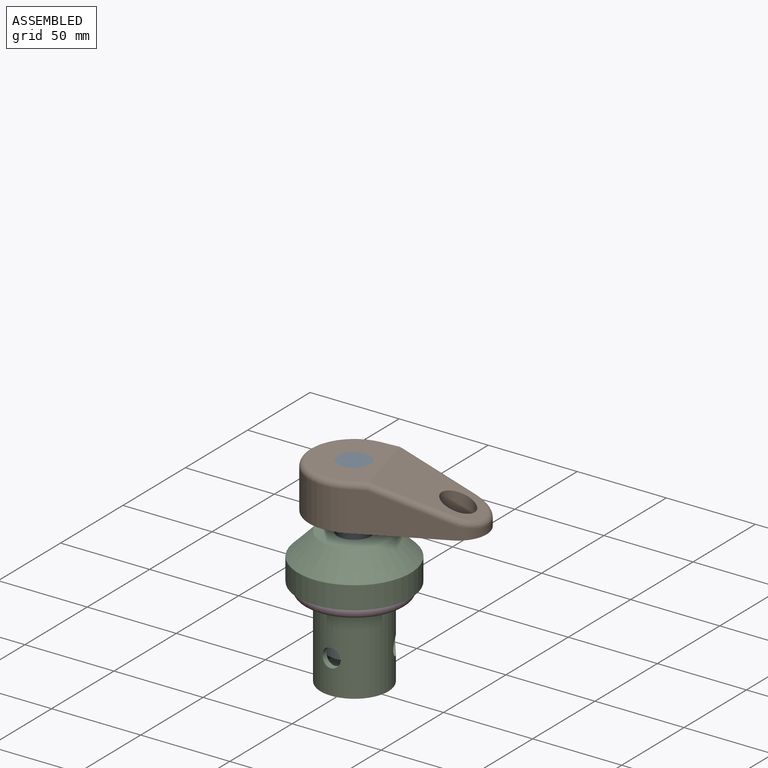
[diagram: assembled view]
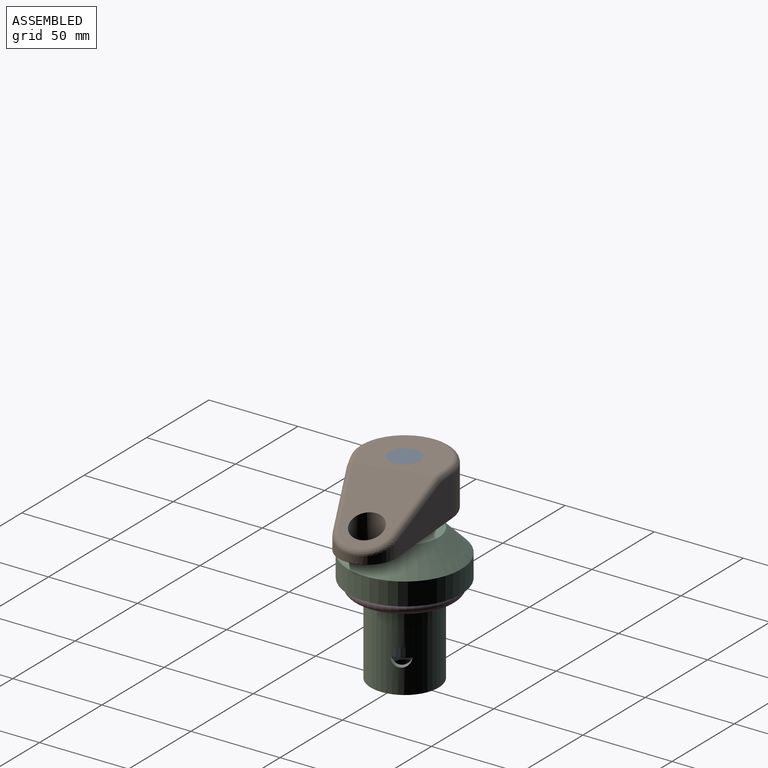
[diagram: assembled view, second angle]
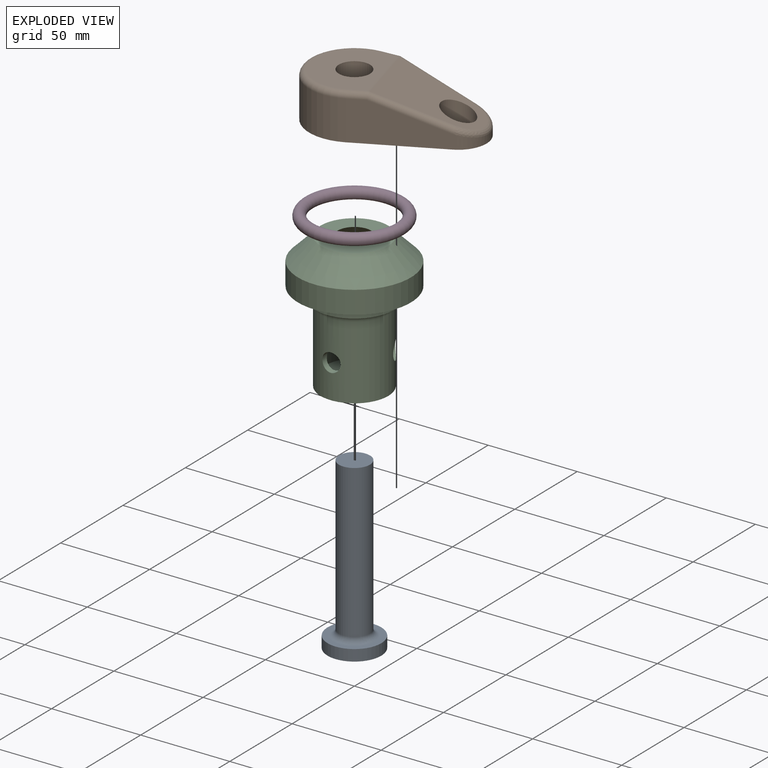
[diagram: exploded view]
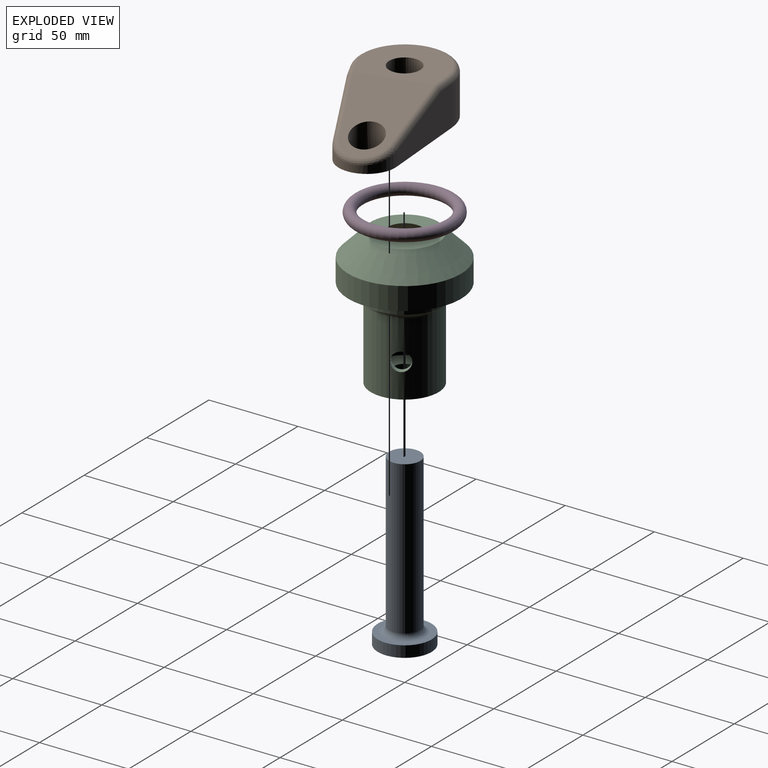
[diagram: exploded view, second angle]
ASSEMBLY  parts=4 mates=3
PART A: 6 faces, bbox 30.2x30.2x95.3 mm
  f0: plane 30.16x30.16mm, normal (0,0,-1), area 714.5mm2, adj f1
  f1: cylinder r=15.08mm len=30.16mm, axis (0,0,-1), area 601.7mm2, adj f0,f2
  f2: plane 30.16x30.16mm, normal (0,0,1), area 269.2mm2, adj f1,f5
  f3: cylinder r=8.73mm len=85.73mm, axis (0,0,-1), area 4702.9mm2, adj f4,f5
  f4: plane 17.46x17.46mm, normal (0,0,1), area 239.5mm2, adj f3
  f5: torus R=11.91mm, axis (0,0,-1), area 309.8mm2, adj f2,f3
PART B: 18 faces, bbox 94.2x55x25.4 mm
  f0: plane 49.01x22.23mm, normal (0.19,-0.98,0), area 821.3mm2, adj f1,f4,f5,f9,f12
  f1: cylinder r=15.88mm len=31.19mm, axis (0,0,1), area 239.8mm2, adj f0,f2,f4,f15
  f2: plane 49.01x22.23mm, normal (0.19,0.98,0), area 821.3mm2, adj f1,f4,f5,f14,f17
  f3: cylinder r=8.73mm len=17.46mm, axis (0,0,1), area 665.3mm2, adj f4,f8
  f4: plane 92.08x50.8mm, normal (0,0,-1), area 3064mm2, adj f0,f1,f2,f3,f5,f6
  f5: cylinder r=25.4mm len=50.8mm, axis (0,0,1), area 1986.4mm2, adj f0,f2,f4,f11
  f6: cylinder r=8.73mm len=25.4mm, axis (0,0,1), area 1393.4mm2, adj f4,f7
  f7: plane 44.45x36mm, normal (0,0,1), area 1122.4mm2, adj f6,f9,f11,f13,f14
  f8: plane 49.72x39.99mm, normal (0.34,0,0.94), area 1312.4mm2, adj f3,f12,f13,f15,f17
  f9: cylinder r=3.17mm len=10.2mm, axis (0.98,0.19,0), area 48.8mm2, adj f0,f7,f10,f11
  f10: sphere r=3.17mm, area 3.3mm2, adj f9,f12,f13
  f11: torus R=22.23mm, axis (0,0,1), area 425.5mm2, adj f5,f7,f9,f14
  f12: cylinder r=3.17mm len=40.02mm, axis (-0.92,-0.18,0.34), area 203.8mm2, adj f0,f8,f10,f15
  f13: cylinder r=3.17mm len=39.99mm, axis (0,-1,0), area 44.3mm2, adj f7,f8,f10,f16
  f14: cylinder r=3.17mm len=10.2mm, axis (-0.98,0.19,0), area 48.8mm2, adj f2,f7,f11,f16
  f15: bspline ~31.19x12.89mm, area 173.1mm2, adj f1,f8,f12,f17
  f16: sphere r=3.17mm, area 3.3mm2, adj f13,f14,f17
  f17: cylinder r=3.17mm len=40.02mm, axis (0.92,-0.18,-0.34), area 203.8mm2, adj f2,f8,f15,f16
PART C: 17 faces, bbox 63.5x63.5x76.2 mm
  f0: cylinder r=19.05mm len=41.28mm, axis (0,0,-1), area 4687.5mm2, adj f2,f10,f11,f12,f13
  f1: cylinder r=15.88mm len=63.5mm, axis (0,0,-1), area 6080.1mm2, adj f8,f9,f10,f11,f12
  f2: plane 38.1x38.1mm, normal (0,0,-1), area 891.8mm2, adj f0,f16
  f3: cylinder r=22.23mm len=44.45mm, axis (0,0,-1), area 443.4mm2, adj f13,f14
  f4: plane 63.5x63.5mm, normal (0,0,-1), area 1140.1mm2, adj f5,f14
  f5: cylinder r=31.75mm len=63.5mm, axis (0,0,-1), area 2533.5mm2, adj f4,f6
  f6: cone r=19.05mm half-angle=45deg, axis (0,0,-1), area 2866.4mm2, adj f5,f7
  f7: plane 38.1x38.1mm, normal (0,0,1), area 855.1mm2, adj f6,f8
  f8: cone r=9.53mm half-angle=45deg, axis (0,0,-1), area 716.6mm2, adj f1,f7
  f9: plane 31.75x31.75mm, normal (0,0,1), area 665.1mm2, adj f1,f15
  f10: cylinder r=5.16mm len=10.31mm, axis (0,1,0), area 105.3mm2, adj f0,f1
  f11: cylinder r=5.16mm len=10.95mm, axis (0.87,-0.5,0), area 105.2mm2, adj f0,f1
  f12: cylinder r=5.16mm len=10.95mm, axis (-0.87,-0.5,0), area 105.2mm2, adj f0,f1
  f13: torus R=22.23mm, axis (0,0,1), area 633.1mm2, adj f0,f3
  f14: torus R=25.4mm, axis (0,0,1), area 732.6mm2, adj f3,f4
  f15: cylinder r=6.35mm len=12.7mm, axis (0,0,-1), area 152mm2, adj f9,f16
  f16: cone r=6.35mm half-angle=45deg, axis (0,0,-1), area 172mm2, adj f2,f15
PART D: 1 faces, bbox 61.9x61.9x6.4 mm
  f0: torus R=25.4mm, axis (0,0,1), area 3183.7mm2
PLACE A rot(axis=(0,0,1),105deg) t=(0,0,10.67)mm
PLACE B rot(axis=(0,0,1),15deg) t=(0,0,10.67)mm
PLACE C rot(axis=(0,0,1),0deg) t=(0,0,0)mm fixed
PLACE D rot(axis=(0,0,1),0deg) t=(0,0,47.62)mm
MATE cylindrical A.f1 <-> C.f0  axis (0,0,-1) through (0,0,17.02)mm
MATE fastened A.f1 <-> B.f5  axis (0,0,1) through (0,0,112.27)mm
MATE fastened D.f0 <-> C.f0  axis (0,0,1) through (0,0,47.62)mm
